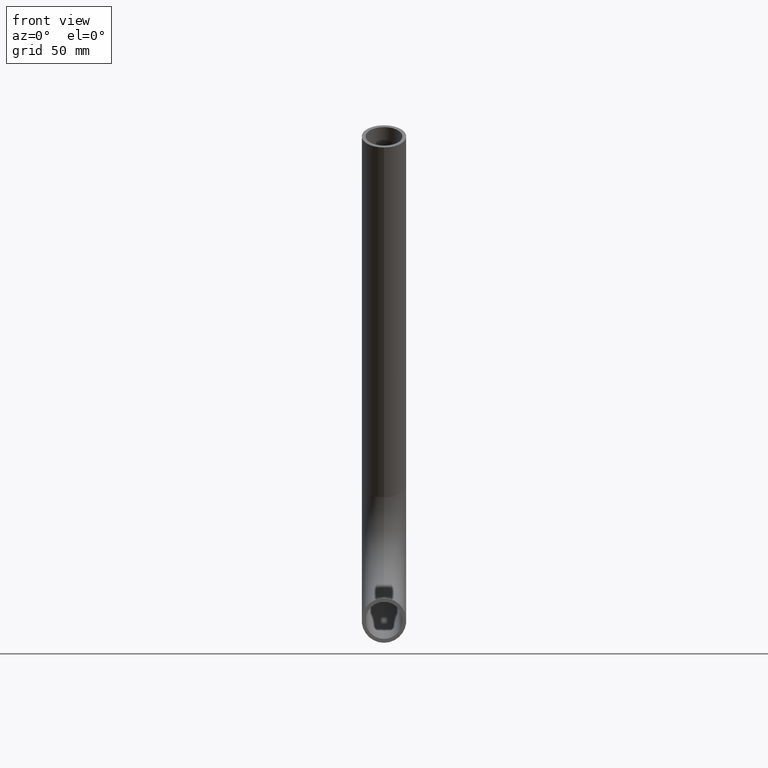
[diagram: clean part render]
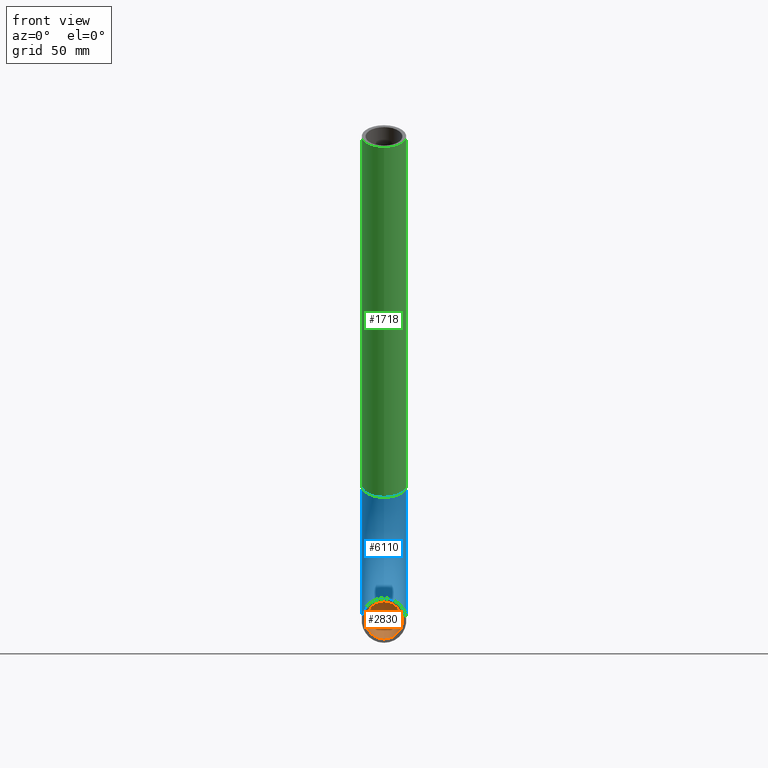
[diagram: same view with three faces highlighted in distinct colors, each labeled with its STEP entity id]
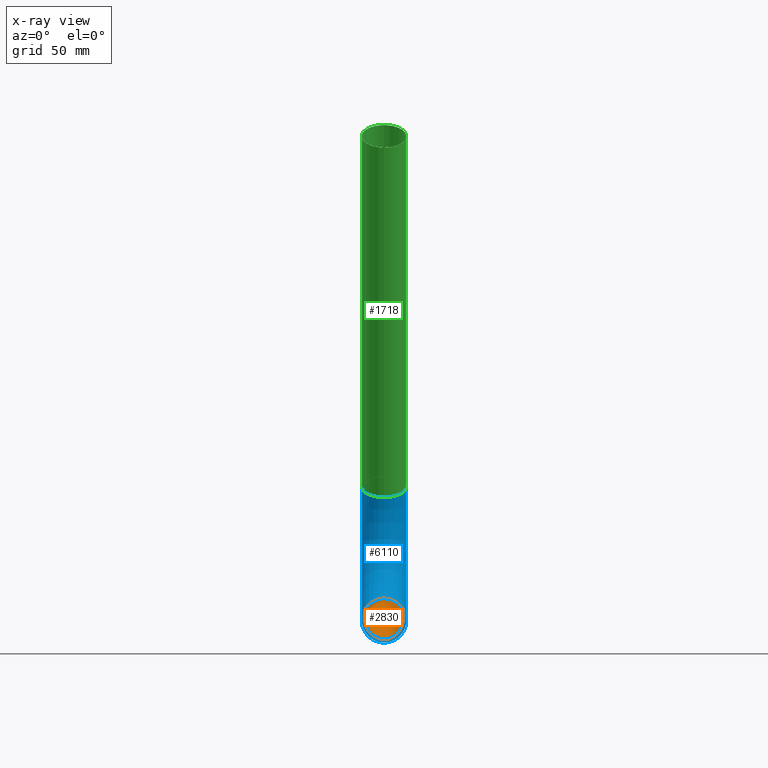
[diagram: x-ray of the same camera — body ghosted, the three highlighted faces saturated]
A machine part, front view with three faces highlighted in distinct colors.
The next image is the same camera in x-ray (body ghosted, the three faces saturated) — at least one of them is partly hidden behind the body in this view.
Their STEP definitions:

[orange] entity #2830 — the highlighted toroidal blend (fillet) surface has major radius 54 mm and minor (blend) radius 11.15 mm.
#229 = EDGE_CURVE ( 'NONE', #10094, #10094, #781, .T. ) ;
#662 = CARTESIAN_POINT ( 'NONE',  ( 0.000000000000000000, 280.5605207875467499, 75.42500000000015348 ) ) ;
#781 = CIRCLE ( 'NONE', #10607, 11.15000000000000924 ) ;
#1337 = DIRECTION ( 'NONE',  ( 0.000000000000000000, -0.8660254037844360431, -0.5000000000000043299 ) ) ;
#1967 = VERTEX_POINT ( 'NONE', #9739 ) ;
#2138 = TOROIDAL_SURFACE ( 'NONE', #8574, 54.00000000000000000, 11.15000000000000213 ) ;
#2502 = AXIS2_PLACEMENT_3D ( 'NONE', #10667, #5074, #9699 ) ;
#2830 = ADVANCED_FACE ( 'NONE', ( #4749, #5732 ), #2138, .F. ) ;
#3195 = DIRECTION ( 'NONE',  ( 0.000000000000000000, -0.5000000000000039968, 0.8660254037844364872 ) ) ;
#4635 = DIRECTION ( 'NONE',  ( 1.000000000000000000, 0.000000000000000000, -0.000000000000000000 ) ) ;
#4749 = FACE_OUTER_BOUND ( 'NONE', #6101, .T. ) ;
#5074 = DIRECTION ( 'NONE',  ( -0.000000000000000000, 1.000000000000000000, -0.000000000000000000 ) ) ;
#5596 = ORIENTED_EDGE ( 'NONE', *, *, #8548, .F. ) ;
#5732 = FACE_OUTER_BOUND ( 'NONE', #7767, .T. ) ;
#6101 = EDGE_LOOP ( 'NONE', ( #5596 ) ) ;
#7767 = EDGE_LOOP ( 'NONE', ( #10778 ) ) ;
#8548 = EDGE_CURVE ( 'NONE', #1967, #1967, #8880, .T. ) ;
#8574 = AXIS2_PLACEMENT_3D ( 'NONE', #9126, #4635, #11768 ) ;
#8880 = CIRCLE ( 'NONE', #2502, 11.15000000000000213 ) ;
#9126 = CARTESIAN_POINT ( 'NONE',  ( 0.000000000000000000, 243.4513322353836031, 54.00000000000000000 ) ) ;
#9699 = DIRECTION ( 'NONE',  ( 0.000000000000000000, 0.000000000000000000, -1.000000000000000000 ) ) ;
#9739 = CARTESIAN_POINT ( 'NONE',  ( 0.000000000000000000, 243.4513322353836031, -11.15000000000000213 ) ) ;
#10094 = VERTEX_POINT ( 'NONE', #662 ) ;
#10607 = AXIS2_PLACEMENT_3D ( 'NONE', #11350, #3195, #1337 ) ;
#10667 = CARTESIAN_POINT ( 'NONE',  ( 0.000000000000000000, 243.4513322353836031, 0.000000000000000000 ) ) ;
#10778 = ORIENTED_EDGE ( 'NONE', *, *, #229, .T. ) ;
#11350 = CARTESIAN_POINT ( 'NONE',  ( 0.000000000000000000, 290.2167040397432061, 81.00000000000021316 ) ) ;
#11768 = DIRECTION ( 'NONE',  ( 0.000000000000000000, 0.000000000000000000, -1.000000000000000000 ) ) ;

[blue] entity #6110 — the highlighted toroidal blend (fillet) surface has major radius 54 mm and minor (blend) radius 13.45 mm.
#128 = DIRECTION ( 'NONE',  ( 0.000000000000000000, 0.000000000000000000, 1.000000000000000000 ) ) ;
#377 = CIRCLE ( 'NONE', #6961, 13.45000000000000107 ) ;
#465 = CARTESIAN_POINT ( 'NONE',  ( 0.000000000000000000, 290.2167040397432061, 81.00000000000021316 ) ) ;
#1259 = CARTESIAN_POINT ( 'NONE',  ( 0.000000000000000000, 243.4513322353836031, 54.00000000000000000 ) ) ;
#1447 = EDGE_LOOP ( 'NONE', ( #2205 ) ) ;
#2205 = ORIENTED_EDGE ( 'NONE', *, *, #9326, .F. ) ;
#2506 = CARTESIAN_POINT ( 'NONE',  ( 0.000000000000000000, 278.5686623588425164, 74.27500000000016200 ) ) ;
#3026 = FACE_OUTER_BOUND ( 'NONE', #1447, .T. ) ;
#3080 = EDGE_LOOP ( 'NONE', ( #3434 ) ) ;
#3312 = DIRECTION ( 'NONE',  ( 0.000000000000000000, -0.5000000000000041078, 0.8660254037844364872 ) ) ;
#3434 = ORIENTED_EDGE ( 'NONE', *, *, #9679, .T. ) ;
#4126 = VERTEX_POINT ( 'NONE', #2506 ) ;
#4322 = FACE_OUTER_BOUND ( 'NONE', #3080, .T. ) ;
#4755 = AXIS2_PLACEMENT_3D ( 'NONE', #465, #3312, #6927 ) ;
#5592 = CIRCLE ( 'NONE', #4755, 13.44999999999999751 ) ;
#5760 = DIRECTION ( 'NONE',  ( 0.000000000000000000, 0.000000000000000000, -1.000000000000000000 ) ) ;
#6110 = ADVANCED_FACE ( 'NONE', ( #4322, #3026 ), #7477, .T. ) ;
#6771 = DIRECTION ( 'NONE',  ( 1.000000000000000000, 0.000000000000000000, -0.000000000000000000 ) ) ;
#6927 = DIRECTION ( 'NONE',  ( 0.000000000000000000, -0.8660254037844363761, -0.5000000000000037748 ) ) ;
#6961 = AXIS2_PLACEMENT_3D ( 'NONE', #7511, #9312, #128 ) ;
#7432 = VERTEX_POINT ( 'NONE', #11860 ) ;
#7477 = TOROIDAL_SURFACE ( 'NONE', #8037, 54.00000000000000000, 13.45000000000000107 ) ;
#7511 = CARTESIAN_POINT ( 'NONE',  ( 0.000000000000000000, 243.4513322353836031, -7.464487448530533640E-29 ) ) ;
#8037 = AXIS2_PLACEMENT_3D ( 'NONE', #1259, #6771, #5760 ) ;
#9312 = DIRECTION ( 'NONE',  ( 0.000000000000000000, 1.000000000000000000, 0.000000000000000000 ) ) ;
#9326 = EDGE_CURVE ( 'NONE', #4126, #4126, #5592, .T. ) ;
#9679 = EDGE_CURVE ( 'NONE', #7432, #7432, #377, .T. ) ;
#11860 = CARTESIAN_POINT ( 'NONE',  ( 0.000000000000000000, 243.4513322353836031, 13.45000000000000107 ) ) ;

[green] entity #1718 — the highlighted cylindrical surface (bore or boss wall) has radius 13.45 mm, axis along (0, -0.5, 0.866).
#465 = CARTESIAN_POINT ( 'NONE',  ( 0.000000000000000000, 290.2167040397432061, 81.00000000000021316 ) ) ;
#970 = VERTEX_POINT ( 'NONE', #3557 ) ;
#1718 = ADVANCED_FACE ( 'NONE', ( #6503, #9877 ), #2780, .T. ) ;
#1838 = EDGE_LOOP ( 'NONE', ( #11205 ) ) ;
#2370 = AXIS2_PLACEMENT_3D ( 'NONE', #5309, #10859, #7115 ) ;
#2506 = CARTESIAN_POINT ( 'NONE',  ( 0.000000000000000000, 278.5686623588425164, 74.27500000000016200 ) ) ;
#2557 = DIRECTION ( 'NONE',  ( 0.000000000000000000, -0.8660254037844368202, -0.5000000000000031086 ) ) ;
#2780 = CYLINDRICAL_SURFACE ( 'NONE', #2370, 13.44999999999999751 ) ;
#3076 = EDGE_CURVE ( 'NONE', #970, #970, #4157, .T. ) ;
#3154 = ORIENTED_EDGE ( 'NONE', *, *, #3076, .F. ) ;
#3312 = DIRECTION ( 'NONE',  ( 0.000000000000000000, -0.5000000000000041078, 0.8660254037844364872 ) ) ;
#3477 = CARTESIAN_POINT ( 'NONE',  ( 0.000000000000000000, 168.4910379220504524, 291.8350383010072733 ) ) ;
#3557 = CARTESIAN_POINT ( 'NONE',  ( 0.000000000000000000, 156.8429962411497911, 285.1100383010072505 ) ) ;
#3716 = AXIS2_PLACEMENT_3D ( 'NONE', #3477, #10671, #2557 ) ;
#4126 = VERTEX_POINT ( 'NONE', #2506 ) ;
#4157 = CIRCLE ( 'NONE', #3716, 13.44999999999999041 ) ;
#4755 = AXIS2_PLACEMENT_3D ( 'NONE', #465, #3312, #6927 ) ;
#5309 = CARTESIAN_POINT ( 'NONE',  ( 0.000000000000000000, 290.2167040397432061, 81.00000000000021316 ) ) ;
#5592 = CIRCLE ( 'NONE', #4755, 13.44999999999999751 ) ;
#6503 = FACE_OUTER_BOUND ( 'NONE', #1838, .T. ) ;
#6927 = DIRECTION ( 'NONE',  ( 0.000000000000000000, -0.8660254037844363761, -0.5000000000000037748 ) ) ;
#7115 = DIRECTION ( 'NONE',  ( 0.000000000000000000, -0.8660254037844363761, -0.5000000000000037748 ) ) ;
#9326 = EDGE_CURVE ( 'NONE', #4126, #4126, #5592, .T. ) ;
#9720 = EDGE_LOOP ( 'NONE', ( #3154 ) ) ;
#9877 = FACE_OUTER_BOUND ( 'NONE', #9720, .T. ) ;
#10671 = DIRECTION ( 'NONE',  ( 0.000000000000000000, -0.5000000000000041078, 0.8660254037844364872 ) ) ;
#10859 = DIRECTION ( 'NONE',  ( 0.000000000000000000, -0.5000000000000039968, 0.8660254037844364872 ) ) ;
#11205 = ORIENTED_EDGE ( 'NONE', *, *, #9326, .T. ) ;